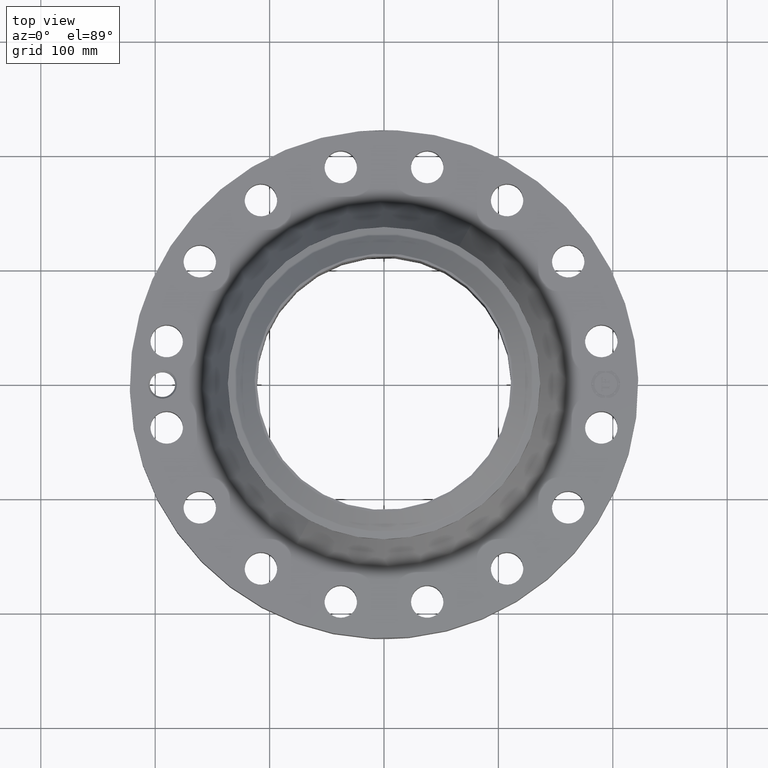
[diagram: clean part render]
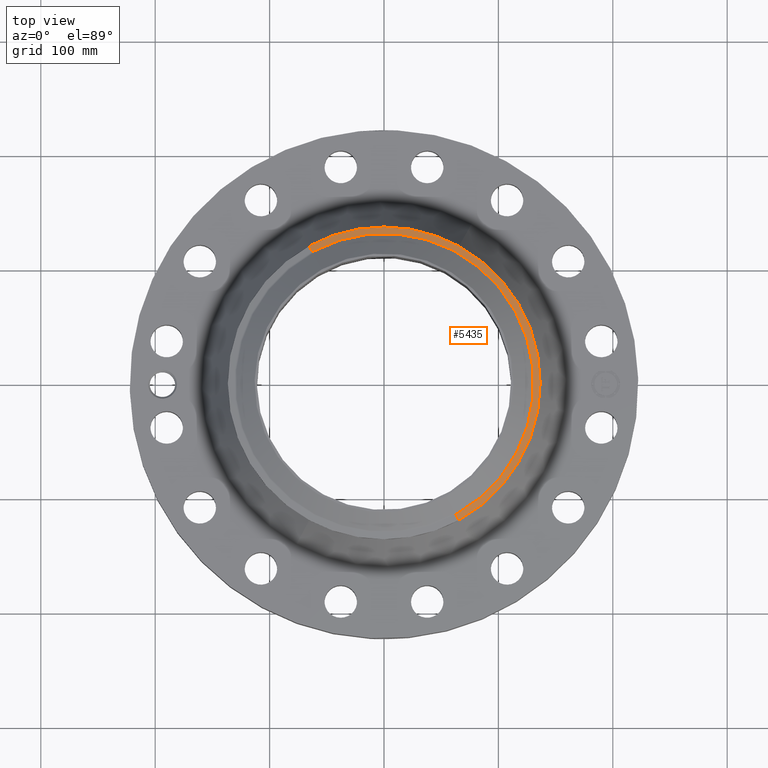
[diagram: same view with one face highlighted and labeled with its STEP entity id]
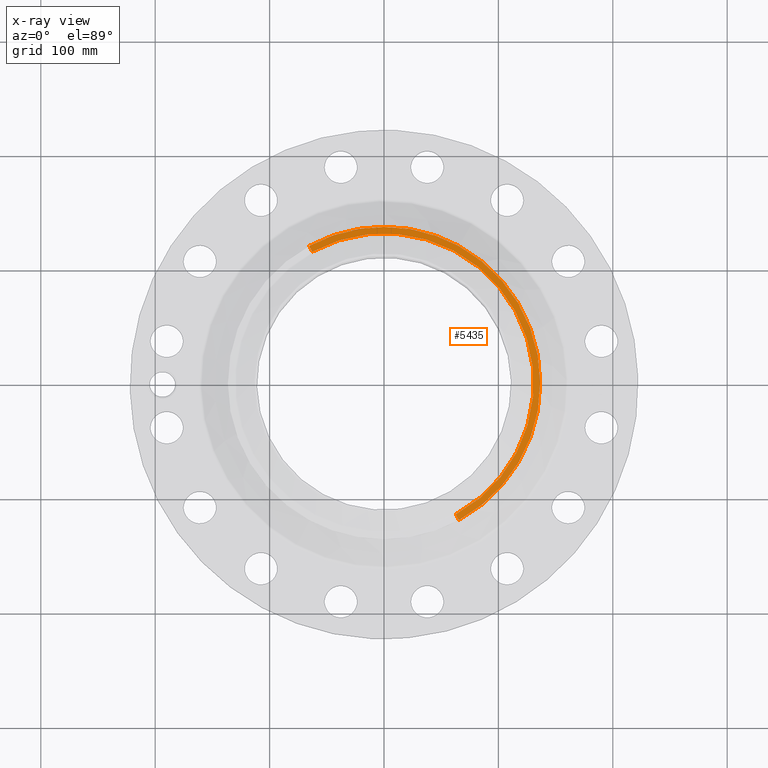
[diagram: x-ray of the same camera — body ghosted, the highlighted face saturated]
A machine part, top view. The second image highlights one B-rep face of the part: STEP entity #5435.
The next image is the same camera in x-ray: the body ghosted, the highlighted face saturated — about 0% of this face is hidden behind the body in this view.
In plain terms, the highlighted conical surface has half-angle 80 deg.
Its self-contained STEP definition (entity closure, byte-faithful):
#3979=AXIS2_PLACEMENT_3D('Circle Axis2P3D',#3977,#3978,$) ;
#4006=AXIS2_PLACEMENT_3D('Circle Axis2P3D',#4004,#4005,$) ;
#4806=AXIS2_PLACEMENT_3D('Circle Axis2P3D',#4804,#4805,$) ;
#5416=AXIS2_PLACEMENT_3D('Cone Axis2P3D',#5413,#5414,#5415) ;
#3974=CARTESIAN_POINT('Vertex',(2.57691227001,4.71700627018,4.12200584757)) ;
#3977=CARTESIAN_POINT('Axis2P3D Location',(0.,0.,4.12200584757)) ;
#3981=CARTESIAN_POINT('Vertex',(2.57691227001,-4.71700627018,4.12200584757)) ;
#4001=CARTESIAN_POINT('Vertex',(-2.57691227001,4.71700627018,4.12200584757)) ;
#4004=CARTESIAN_POINT('Axis2P3D Location',(0.,0.,4.12200584757)) ;
#4782=CARTESIAN_POINT('Vertex',(-2.46975769445,4.52086113529,4.16141601924)) ;
#4789=CARTESIAN_POINT('Vertex',(2.46975769445,-4.52086113529,4.16141601924)) ;
#4804=CARTESIAN_POINT('Axis2P3D Location',(0.,0.,4.16141601924)) ;
#5413=CARTESIAN_POINT('Axis2P3D Location',(0.,0.,4.16141601924)) ;
#5418=CARTESIAN_POINT('Line Origine',(-2.52333498223,4.61893370274,4.1417109334)) ;
#5423=CARTESIAN_POINT('Line Origine',(2.52333498223,-4.61893370274,4.1417109334)) ;
#3978=DIRECTION('Axis2P3D Direction',(0.,0.,-0.0393700787402)) ;
#4005=DIRECTION('Axis2P3D Direction',(0.,0.,-0.0393700787402)) ;
#4805=DIRECTION('Axis2P3D Direction',(0.,0.,0.0393700787402)) ;
#5414=DIRECTION('Axis2P3D Direction',(-0.,-0.,-0.0393700787402)) ;
#5415=DIRECTION('Axis2P3D XDirection',(0.0188750212049,-0.0345504945626,0.)) ;
#5419=DIRECTION('Vector Direction',(-0.0185882672208,0.0340255949157,-0.00683654242783)) ;
#5424=DIRECTION('Vector Direction',(0.0185882672208,-0.0340255949157,-0.00683654242783)) ;
#5420=VECTOR('Line Direction',#5419,0.0393700787402) ;
#5425=VECTOR('Line Direction',#5424,0.0393700787402) ;
#5429=ORIENTED_EDGE('',*,*,#5422,.F.) ;
#5430=ORIENTED_EDGE('',*,*,#4808,.F.) ;
#5431=ORIENTED_EDGE('',*,*,#5427,.T.) ;
#5432=ORIENTED_EDGE('',*,*,#3983,.T.) ;
#5433=ORIENTED_EDGE('',*,*,#4008,.F.) ;
#5435=ADVANCED_FACE('PartBody',(#5434),#5417,.T.) ;
#3980=CIRCLE('generated circle',#3979,5.37500000002) ;
#4007=CIRCLE('generated circle',#4006,5.37500000002) ;
#4807=CIRCLE('generated circle',#4806,5.15149380994) ;
#5417=CONICAL_SURFACE('Cone',#5416,5.15149380994,1.3962634016) ;
#3983=EDGE_CURVE('',#3982,#3975,#3980,.F.) ;
#4008=EDGE_CURVE('',#4002,#3975,#4007,.T.) ;
#4808=EDGE_CURVE('',#4790,#4783,#4807,.T.) ;
#5422=EDGE_CURVE('',#4783,#4002,#5421,.T.) ;
#5427=EDGE_CURVE('',#4790,#3982,#5426,.T.) ;
#5428=EDGE_LOOP('',(#5429,#5430,#5431,#5432,#5433)) ;
#5434=FACE_OUTER_BOUND('',#5428,.T.) ;
#5421=LINE('Line',#5418,#5420) ;
#5426=LINE('Line',#5423,#5425) ;
#3975=VERTEX_POINT('',#3974) ;
#3982=VERTEX_POINT('',#3981) ;
#4002=VERTEX_POINT('',#4001) ;
#4783=VERTEX_POINT('',#4782) ;
#4790=VERTEX_POINT('',#4789) ;